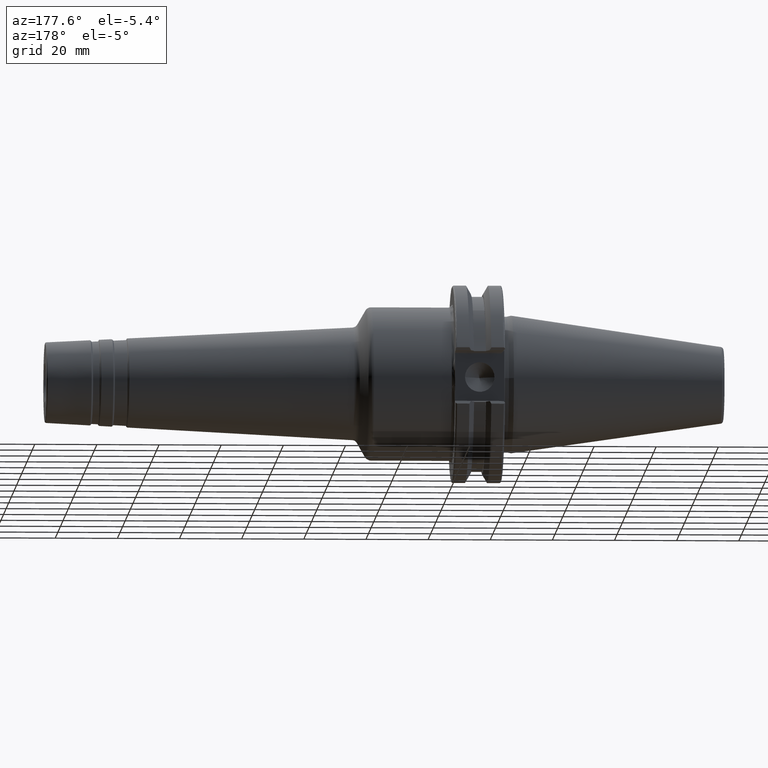
[diagram: clean part render]
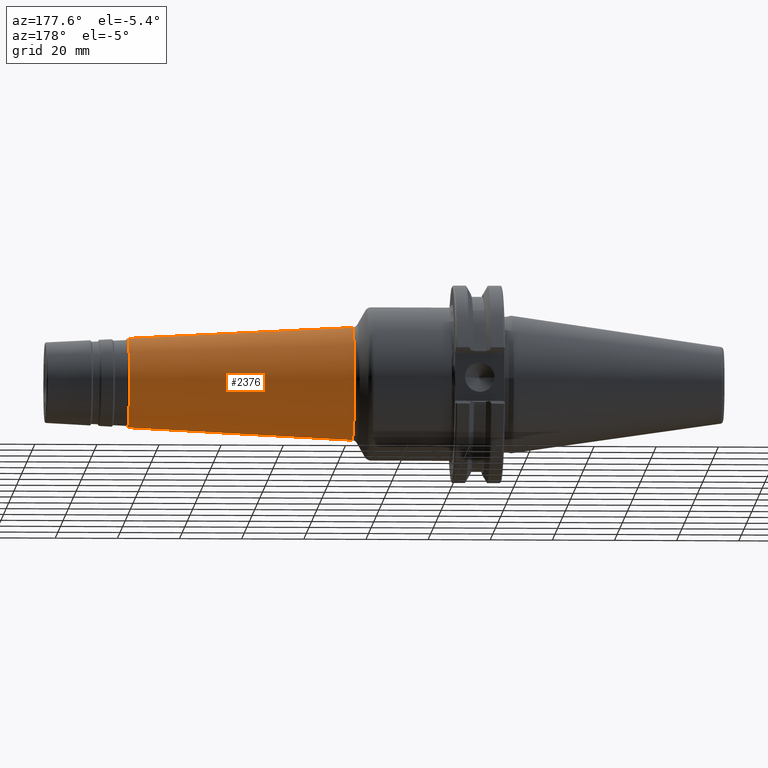
[diagram: same view with one face highlighted and labeled with its STEP entity id]
A machine part, auxiliary view. The second image highlights one B-rep face of the part: STEP entity #2376.
In plain terms, the highlighted conical surface has half-angle 3 deg.
Its self-contained STEP definition (entity closure, byte-faithful):
#306=CARTESIAN_POINT('',(5.110942319545E1,0.E0,0.E0));
#307=DIRECTION('',(1.E0,0.E0,0.E0));
#308=DIRECTION('',(0.E0,0.E0,-1.E0));
#309=AXIS2_PLACEMENT_3D('',#306,#307,#308);
#326=DIRECTION('',(-9.986295347546E-1,0.E0,-5.233595624294E-2));
#327=VECTOR('',#326,7.239565271443E1);
#328=CARTESIAN_POINT('',(1.234058601839E2,0.E0,-1.439505000419E1));
#329=LINE('',#328,#327);
#330=DIRECTION('',(-9.986295347546E-1,0.E0,5.233595624294E-2));
#331=VECTOR('',#330,7.239565271443E1);
#332=CARTESIAN_POINT('',(1.234058601839E2,0.E0,1.439505000419E1));
#333=LINE('',#332,#331);
#339=CARTESIAN_POINT('',(1.234058601839E2,0.E0,0.E0));
#340=DIRECTION('',(1.E0,0.E0,0.E0));
#341=DIRECTION('',(0.E0,0.E0,-1.E0));
#342=AXIS2_PLACEMENT_3D('',#339,#340,#341);
#1762=CARTESIAN_POINT('',(1.234058601839E2,0.E0,-1.439505000419E1));
#1763=VERTEX_POINT('',#1762);
#1764=CARTESIAN_POINT('',(5.110942319545E1,0.E0,-1.818394571683E1));
#1765=VERTEX_POINT('',#1764);
#1818=CARTESIAN_POINT('',(1.234058601839E2,0.E0,1.439505000419E1));
#1819=VERTEX_POINT('',#1818);
#1820=CARTESIAN_POINT('',(5.110942319545E1,0.E0,1.818394571683E1));
#1821=VERTEX_POINT('',#1820);
#2364=CARTESIAN_POINT('',(8.725764168968E1,0.E0,0.E0));
#2365=DIRECTION('',(-1.E0,0.E0,0.E0));
#2366=DIRECTION('',(0.E0,0.E0,-1.E0));
#2367=AXIS2_PLACEMENT_3D('',#2364,#2365,#2366);
#2368=CONICAL_SURFACE('',#2367,1.628949786051E1,3.E0);
#2369=ORIENTED_EDGE('',*,*,#2354,.F.);
#2371=ORIENTED_EDGE('',*,*,#2370,.T.);
#2372=ORIENTED_EDGE('',*,*,#2357,.T.);
#2373=ORIENTED_EDGE('',*,*,#2328,.F.);
#2374=EDGE_LOOP('',(#2369,#2371,#2372,#2373));
#2375=FACE_OUTER_BOUND('',#2374,.F.);
#2376=ADVANCED_FACE('',(#2375),#2368,.T.);
#310=CIRCLE('',#309,1.818394571683E1);
#343=CIRCLE('',#342,1.439505000419E1);
#2328=EDGE_CURVE('',#1765,#1821,#310,.T.);
#2354=EDGE_CURVE('',#1763,#1765,#329,.T.);
#2357=EDGE_CURVE('',#1819,#1821,#333,.T.);
#2370=EDGE_CURVE('',#1763,#1819,#343,.T.);